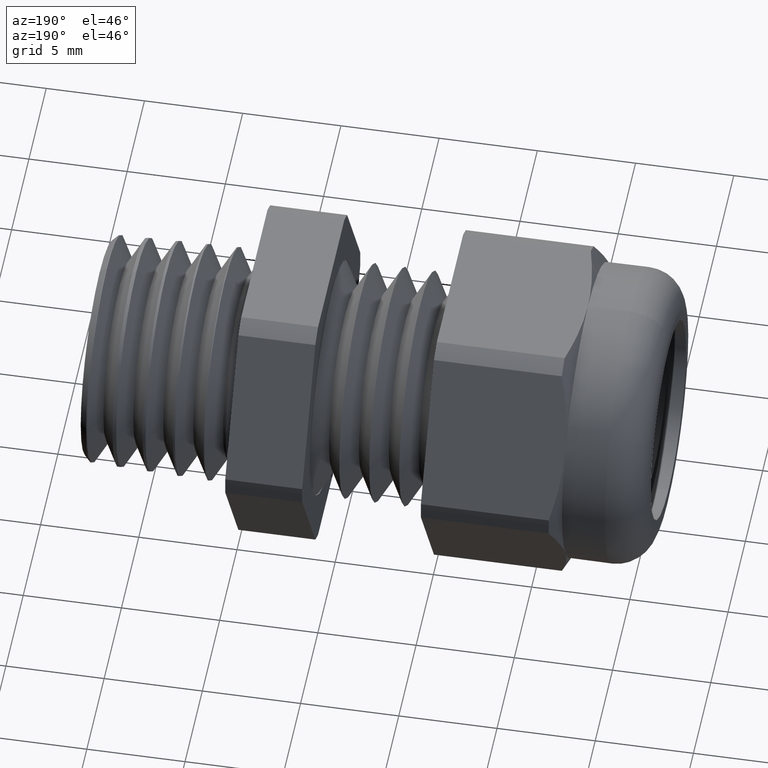
[diagram: clean part render]
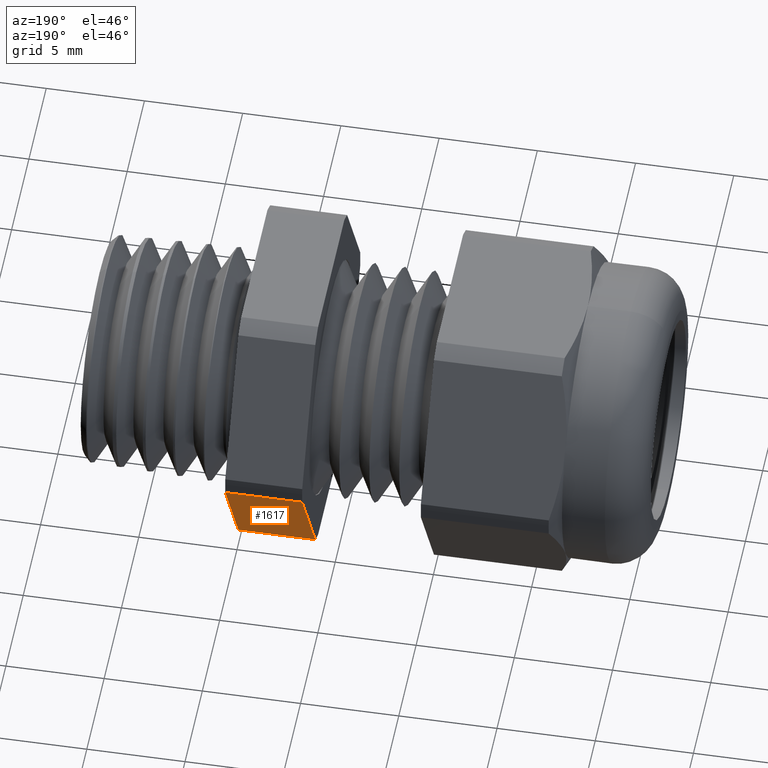
[diagram: same view with one face highlighted and labeled with its STEP entity id]
A machine part, auxiliary view. The second image highlights one B-rep face of the part: STEP entity #1617.
In plain terms, the highlighted planar face has unit normal (0, 0.866, -0.5).
Its self-contained STEP definition (entity closure, byte-faithful):
#386 = DIRECTION ( 'NONE',  ( 0.0000000000000000000, 0.4999999999999994400, 0.8660254037844389300 ) ) ;
#387 = VECTOR ( 'NONE', #386, 39.37007874015748100 ) ;
#388 = CARTESIAN_POINT ( 'NONE',  ( 0.0000000000000000000, 0.1810813248601910200, -0.2763579450402648400 ) ) ;
#389 = LINE ( 'NONE', #388, #387 ) ;
#1050 = CARTESIAN_POINT ( 'NONE',  ( -0.1542288557213930500, 0.1810813248601910200, -0.2763579450402648400 ) ) ;
#1051 = DIRECTION ( 'NONE',  ( 0.0000000000000000000, 0.4999999999999994400, 0.8660254037844389300 ) ) ;
#1052 = VECTOR ( 'NONE', #1051, 39.37007874015748100 ) ;
#1053 = CARTESIAN_POINT ( 'NONE',  ( -0.1542288557213930500, 0.3142274941164096600, -0.04574201505532864800 ) ) ;
#1054 = LINE ( 'NONE', #1053, #1052 ) ;
#1055 = CARTESIAN_POINT ( 'NONE',  ( -0.1542288557213930500, 0.3298736633726285800, -0.01864205495973528200 ) ) ;
#1150 = CARTESIAN_POINT ( 'NONE',  ( 1.365923996832131600E-016, 0.3298736633726285800, -0.01864205495973528200 ) ) ;
#1178 = DIRECTION ( 'NONE',  ( 1.000000000000000000, 0.0000000000000000000, 0.0000000000000000000 ) ) ;
#1179 = VECTOR ( 'NONE', #1178, 39.37007874015748100 ) ;
#1180 = CARTESIAN_POINT ( 'NONE',  ( -1.612607445236302800, 0.3298736633726285800, -0.01864205495973528200 ) ) ;
#1181 = LINE ( 'NONE', #1180, #1179 ) ;
#1182 = CARTESIAN_POINT ( 'NONE',  ( 0.0000000000000000000, 0.1810813248601910200, -0.2763579450402648400 ) ) ;
#1183 = DIRECTION ( 'NONE',  ( 1.000000000000000000, 0.0000000000000000000, 0.0000000000000000000 ) ) ;
#1184 = VECTOR ( 'NONE', #1183, 39.37007874015748100 ) ;
#1185 = CARTESIAN_POINT ( 'NONE',  ( -1.612607445236302800, 0.1810813248601910200, -0.2763579450402648400 ) ) ;
#1186 = LINE ( 'NONE', #1185, #1184 ) ;
#1532 = ORIENTED_EDGE ( 'NONE', *, *, #2716, .F. ) ;
#1533 = ORIENTED_EDGE ( 'NONE', *, *, #1926, .F. ) ;
#1534 = ORIENTED_EDGE ( 'NONE', *, *, #2719, .T. ) ;
#1611 = ORIENTED_EDGE ( 'NONE', *, *, #2618, .T. ) ;
#1614 = EDGE_LOOP ( 'NONE', ( #1611, #1534, #1533, #1532 ) ) ;
#1617 = ADVANCED_FACE ( 'NONE', ( #3001 ), #3000, .T. ) ;
#1926 = EDGE_CURVE ( 'NONE', #2717, #2701, #389, .T. ) ;
#2616 = VERTEX_POINT ( 'NONE', #1055 ) ;
#2618 = EDGE_CURVE ( 'NONE', #2619, #2616, #1054, .T. ) ;
#2619 = VERTEX_POINT ( 'NONE', #1050 ) ;
#2701 = VERTEX_POINT ( 'NONE', #1150 ) ;
#2716 = EDGE_CURVE ( 'NONE', #2619, #2717, #1186, .T. ) ;
#2717 = VERTEX_POINT ( 'NONE', #1182 ) ;
#2719 = EDGE_CURVE ( 'NONE', #2616, #2701, #1181, .T. ) ;
#2996 = DIRECTION ( 'NONE',  ( 0.0000000000000000000, 0.4999999999999994400, 0.8660254037844389300 ) ) ;
#2997 = DIRECTION ( 'NONE',  ( 0.0000000000000000000, 0.8660254037844390400, -0.4999999999999995000 ) ) ;
#2998 = CARTESIAN_POINT ( 'NONE',  ( -1.612607445236302800, 0.1810813248601910200, -0.2763579450402648400 ) ) ;
#2999 = AXIS2_PLACEMENT_3D ( 'NONE', #2998, #2997, #2996 ) ;
#3000 = PLANE ( 'NONE',  #2999 ) ;
#3001 = FACE_OUTER_BOUND ( 'NONE', #1614, .T. ) ;